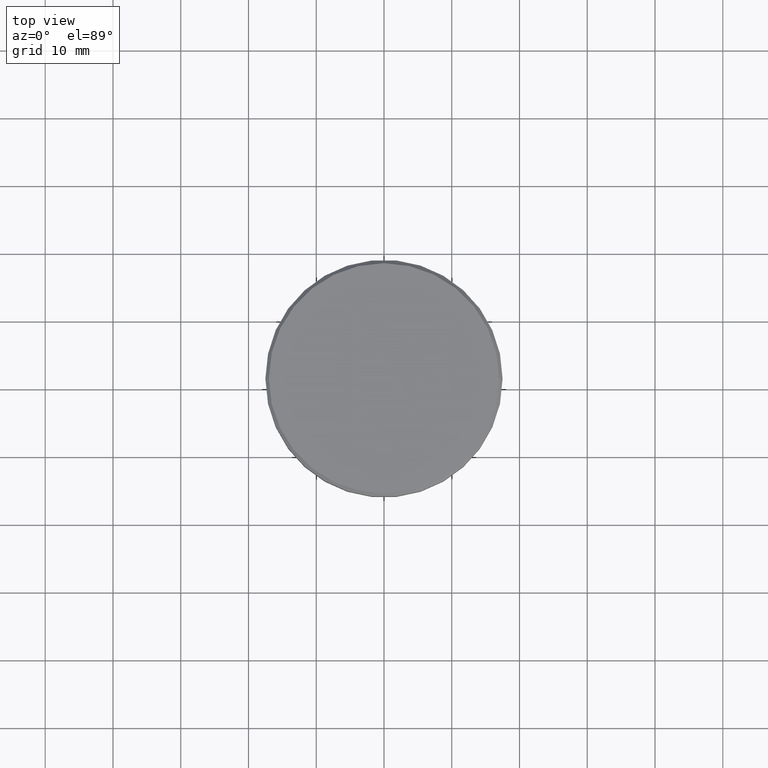
[diagram: clean part render]
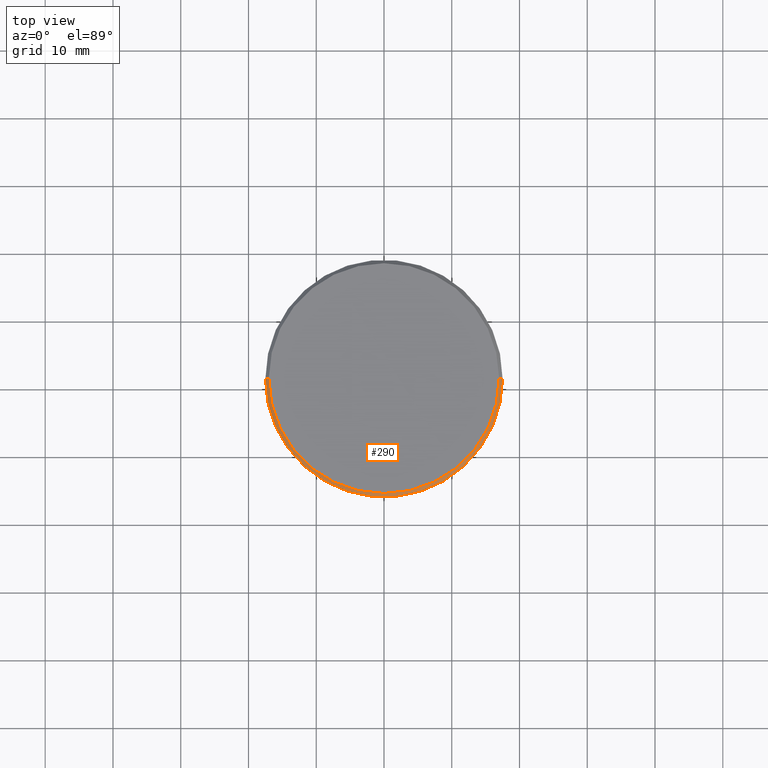
[diagram: same view with one face highlighted and labeled with its STEP entity id]
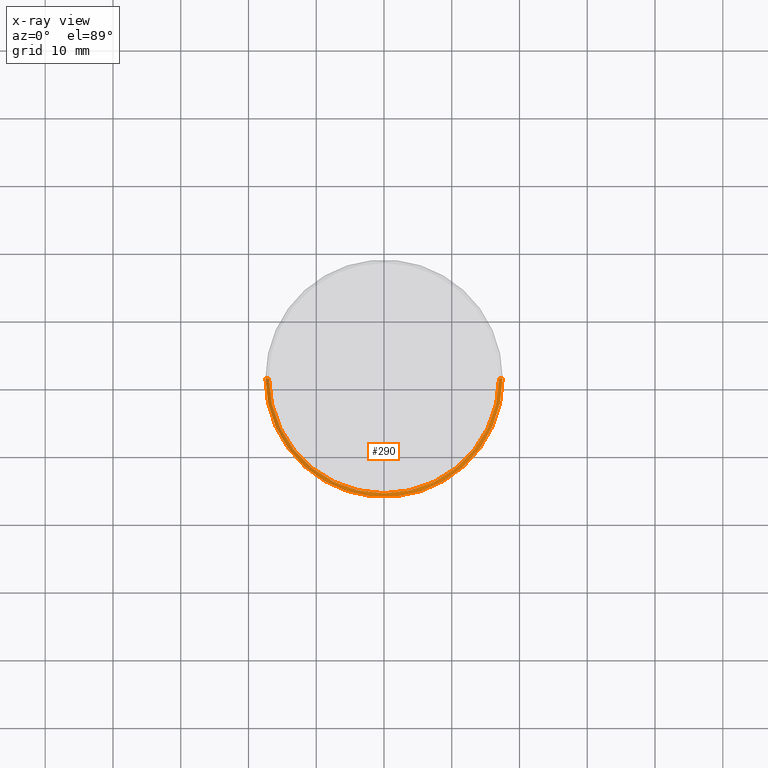
[diagram: x-ray of the same camera — body ghosted, the highlighted face saturated]
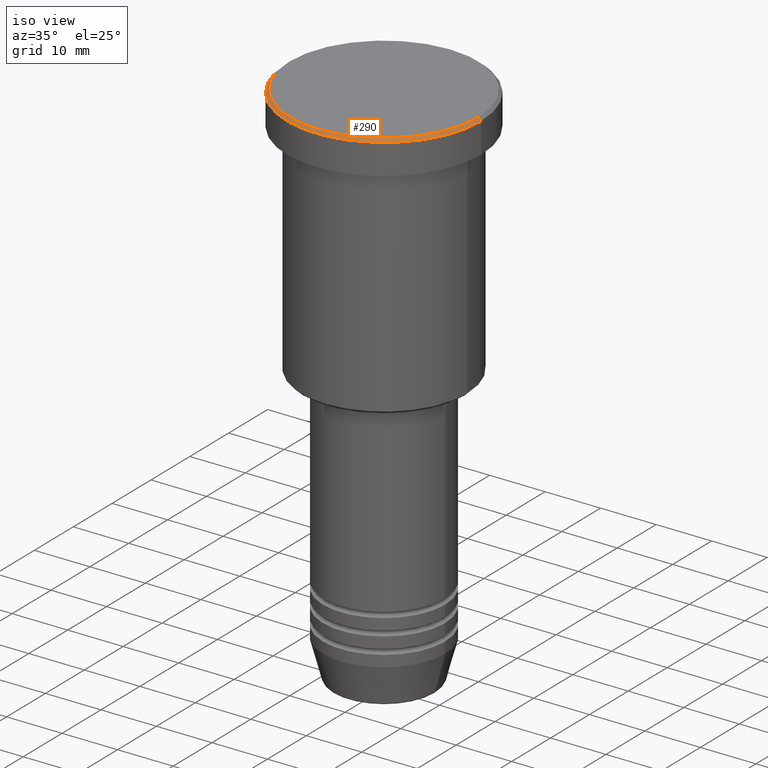
[diagram: same view with one face highlighted and labeled with its STEP entity id]
A machine part, top view. The second image highlights one B-rep face of the part: STEP entity #290.
The next image is the same camera in x-ray: the body ghosted, the highlighted face saturated — about 0% of this face is hidden behind the body in this view.
A second angle (iso view) of the same face is appended — the face is thin or edge-on in the first view.
In plain terms, the highlighted conical surface has half-angle 45 deg.
Its self-contained STEP definition (entity closure, byte-faithful):
#13 = DIRECTION ( 'NONE',  ( -0.7071067811865573427, 0.000000000000000000, -0.7071067811865378028 ) ) ;
#14 = EDGE_CURVE ( 'NONE', #1164, #834, #924, .T. ) ;
#52 = DIRECTION ( 'NONE',  ( -1.000000000000000000, 0.000000000000000000, 0.000000000000000000 ) ) ;
#67 = AXIS2_PLACEMENT_3D ( 'NONE', #598, #158, #944 ) ;
#92 = ORIENTED_EDGE ( 'NONE', *, *, #703, .F. ) ;
#158 = DIRECTION ( 'NONE',  ( -0.000000000000000000, -0.000000000000000000, 1.000000000000000000 ) ) ;
#183 = CIRCLE ( 'NONE', #67, 17.00000000000000000 ) ;
#276 = CARTESIAN_POINT ( 'NONE',  ( -17.00000000000000000, 0.000000000000000000, 0.000000000000000000 ) ) ;
#290 = ADVANCED_FACE ( 'NONE', ( #614 ), #602, .T. ) ;
#297 = CIRCLE ( 'NONE', #1119, 17.50000000000000000 ) ;
#298 = VERTEX_POINT ( 'NONE', #506 ) ;
#450 = ORIENTED_EDGE ( 'NONE', *, *, #934, .T. ) ;
#478 = DIRECTION ( 'NONE',  ( 1.000000000000000000, 0.000000000000000000, 0.000000000000000000 ) ) ;
#487 = CARTESIAN_POINT ( 'NONE',  ( 17.00000000000000000, 2.112515728529184067E-15, 0.000000000000000000 ) ) ;
#502 = CARTESIAN_POINT ( 'NONE',  ( -17.00000000000000000, 0.000000000000000000, 0.000000000000000000 ) ) ;
#506 = CARTESIAN_POINT ( 'NONE',  ( -17.50000000000000000, 2.143131898507868248E-15, -0.4999999999999866773 ) ) ;
#511 = DIRECTION ( 'NONE',  ( 0.000000000000000000, 0.000000000000000000, -1.000000000000000000 ) ) ;
#527 = DIRECTION ( 'NONE',  ( 0.000000000000000000, 0.000000000000000000, -1.000000000000000000 ) ) ;
#543 = VECTOR ( 'NONE', #883, 1000.000000000000000 ) ;
#579 = CARTESIAN_POINT ( 'NONE',  ( 0.000000000000000000, 0.000000000000000000, -0.4999999999999866773 ) ) ;
#598 = CARTESIAN_POINT ( 'NONE',  ( 0.000000000000000000, 0.000000000000000000, 0.000000000000000000 ) ) ;
#602 = CONICAL_SURFACE ( 'NONE', #772, 17.00000000000000000, 0.7853981633974621568 ) ;
#614 = FACE_OUTER_BOUND ( 'NONE', #908, .T. ) ;
#646 = ORIENTED_EDGE ( 'NONE', *, *, #14, .F. ) ;
#703 = EDGE_CURVE ( 'NONE', #1088, #1164, #183, .T. ) ;
#705 = CARTESIAN_POINT ( 'NONE',  ( 17.50000000000000000, 0.000000000000000000, -0.4999999999999866773 ) ) ;
#772 = AXIS2_PLACEMENT_3D ( 'NONE', #976, #527, #52 ) ;
#813 = VECTOR ( 'NONE', #13, 1000.000000000000000 ) ;
#832 = LINE ( 'NONE', #276, #813 ) ;
#834 = VERTEX_POINT ( 'NONE', #705 ) ;
#883 = DIRECTION ( 'NONE',  ( 0.7071067811865573427, 8.659560562355053653E-17, -0.7071067811865378028 ) ) ;
#908 = EDGE_LOOP ( 'NONE', ( #646, #92, #450, #962 ) ) ;
#924 = LINE ( 'NONE', #971, #543 ) ;
#934 = EDGE_CURVE ( 'NONE', #1088, #298, #832, .T. ) ;
#944 = DIRECTION ( 'NONE',  ( 1.000000000000000000, 0.000000000000000000, 0.000000000000000000 ) ) ;
#962 = ORIENTED_EDGE ( 'NONE', *, *, #1140, .F. ) ;
#971 = CARTESIAN_POINT ( 'NONE',  ( 17.00000000000000000, 2.081899558550500280E-15, 0.000000000000000000 ) ) ;
#976 = CARTESIAN_POINT ( 'NONE',  ( 0.000000000000000000, 0.000000000000000000, 0.000000000000000000 ) ) ;
#1088 = VERTEX_POINT ( 'NONE', #502 ) ;
#1119 = AXIS2_PLACEMENT_3D ( 'NONE', #579, #511, #478 ) ;
#1140 = EDGE_CURVE ( 'NONE', #834, #298, #297, .T. ) ;
#1164 = VERTEX_POINT ( 'NONE', #487 ) ;